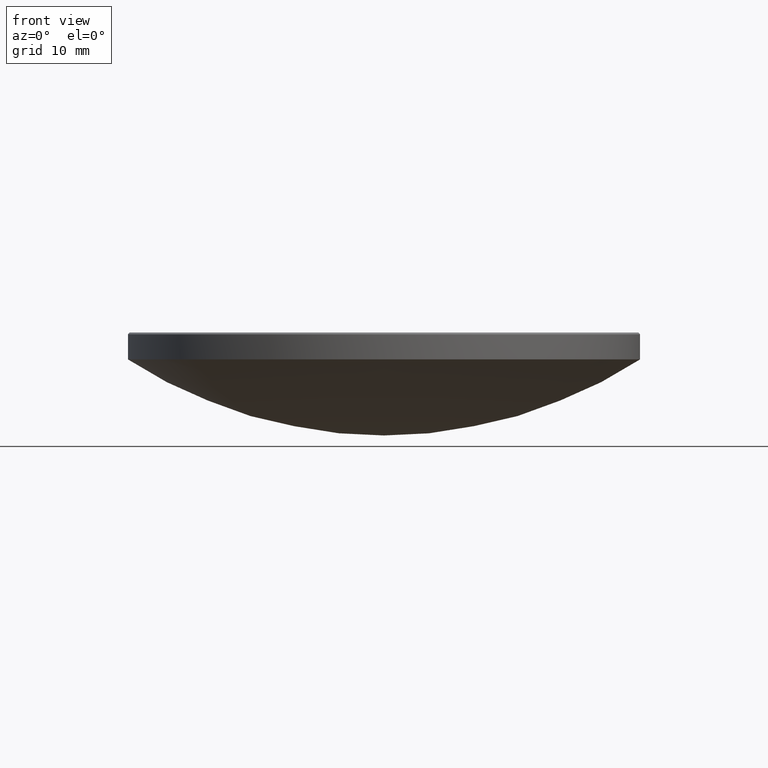
[diagram: clean part render]
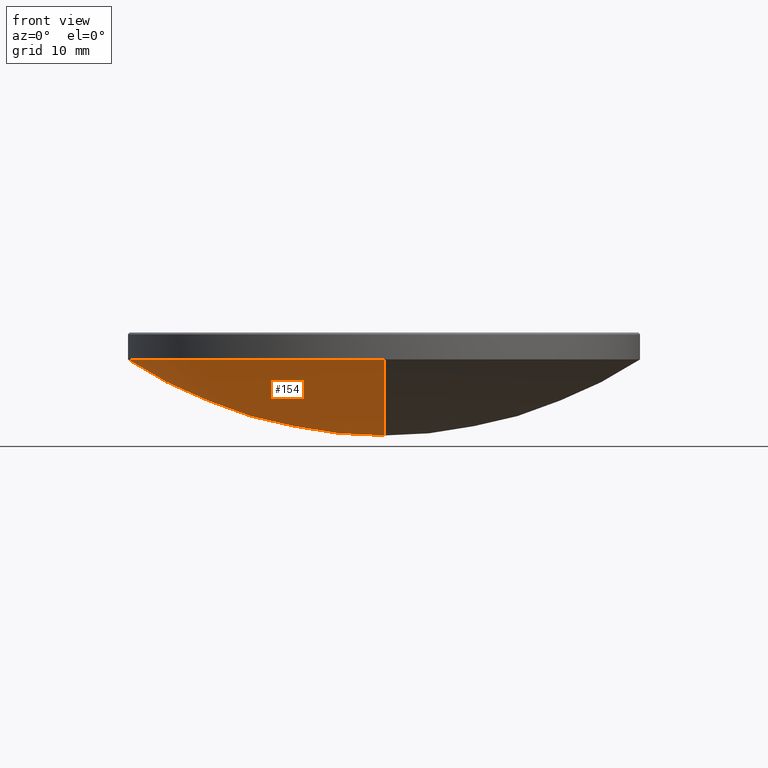
[diagram: same view with one face highlighted and labeled with its STEP entity id]
A machine part, front view. The second image highlights one B-rep face of the part: STEP entity #154.
In plain terms, the highlighted spherical surface has radius 46.53 mm.
Its self-contained STEP definition (entity closure, byte-faithful):
#5 = ORIENTED_EDGE ( 'NONE', *, *, #36, .F. ) ;
#11 = CARTESIAN_POINT ( 'NONE',  ( 0.000000000000000000, 0.000000000000000000, 53.98564992404256913 ) ) ;
#28 = CARTESIAN_POINT ( 'NONE',  ( 0.000000000000000000, 0.000000000000000000, 53.98564992404256913 ) ) ;
#34 = VERTEX_POINT ( 'NONE', #236 ) ;
#36 = EDGE_CURVE ( 'NONE', #144, #116, #131, .T. ) ;
#38 = CIRCLE ( 'NONE', #177, 25.39999999999999503 ) ;
#41 = ORIENTED_EDGE ( 'NONE', *, *, #244, .T. ) ;
#44 = DIRECTION ( 'NONE',  ( 1.000000000000000000, 0.000000000000000000, 0.000000000000000000 ) ) ;
#57 = DIRECTION ( 'NONE',  ( -1.000000000000000000, 1.224646799147353207E-16, 0.000000000000000000 ) ) ;
#71 = CIRCLE ( 'NONE', #278, 46.53000000000000114 ) ;
#77 = EDGE_CURVE ( 'NONE', #83, #144, #71, .T. ) ;
#83 = VERTEX_POINT ( 'NONE', #109 ) ;
#96 = CARTESIAN_POINT ( 'NONE',  ( 0.000000000000000000, 25.39999999999999858, 15.00000000000000000 ) ) ;
#100 = AXIS2_PLACEMENT_3D ( 'NONE', #28, #114, #266 ) ;
#109 = CARTESIAN_POINT ( 'NONE',  ( 0.000000000000000000, 2.849140778216317103E-15, 7.455649924042566212 ) ) ;
#110 = CARTESIAN_POINT ( 'NONE',  ( -25.39999999999999503, 0.000000000000000000, 15.00000000000000000 ) ) ;
#114 = DIRECTION ( 'NONE',  ( -1.000000000000000000, 0.000000000000000000, 0.000000000000000000 ) ) ;
#116 = VERTEX_POINT ( 'NONE', #110 ) ;
#122 = CARTESIAN_POINT ( 'NONE',  ( 0.000000000000000000, 0.000000000000000000, 15.00000000000000000 ) ) ;
#131 = CIRCLE ( 'NONE', #170, 25.39999999999999503 ) ;
#141 = DIRECTION ( 'NONE',  ( -1.224646799147353207E-16, -1.000000000000000000, 0.000000000000000000 ) ) ;
#144 = VERTEX_POINT ( 'NONE', #96 ) ;
#148 = DIRECTION ( 'NONE',  ( 1.000000000000000000, -0.000000000000000000, 0.000000000000000000 ) ) ;
#154 = ADVANCED_FACE ( 'NONE', ( #198 ), #225, .T. ) ;
#158 = ORIENTED_EDGE ( 'NONE', *, *, #77, .F. ) ;
#164 = AXIS2_PLACEMENT_3D ( 'NONE', #11, #57, #141 ) ;
#167 = DIRECTION ( 'NONE',  ( -0.000000000000000000, -0.000000000000000000, 1.000000000000000000 ) ) ;
#170 = AXIS2_PLACEMENT_3D ( 'NONE', #240, #167, #44 ) ;
#177 = AXIS2_PLACEMENT_3D ( 'NONE', #122, #201, #186 ) ;
#186 = DIRECTION ( 'NONE',  ( 1.000000000000000000, 0.000000000000000000, 0.000000000000000000 ) ) ;
#191 = CIRCLE ( 'NONE', #164, 46.53000000000000114 ) ;
#198 = FACE_OUTER_BOUND ( 'NONE', #273, .T. ) ;
#201 = DIRECTION ( 'NONE',  ( -0.000000000000000000, -0.000000000000000000, 1.000000000000000000 ) ) ;
#219 = DIRECTION ( 'NONE',  ( 0.000000000000000000, 0.000000000000000000, -1.000000000000000000 ) ) ;
#225 = SPHERICAL_SURFACE ( 'NONE', #100, 46.53000000000000114 ) ;
#236 = CARTESIAN_POINT ( 'NONE',  ( -3.110602869834276471E-15, -25.39999999999999858, 15.00000000000000000 ) ) ;
#239 = EDGE_CURVE ( 'NONE', #116, #34, #38, .T. ) ;
#240 = CARTESIAN_POINT ( 'NONE',  ( 0.000000000000000000, 0.000000000000000000, 15.00000000000000000 ) ) ;
#242 = CARTESIAN_POINT ( 'NONE',  ( 0.000000000000000000, 0.000000000000000000, 53.98564992404256913 ) ) ;
#244 = EDGE_CURVE ( 'NONE', #83, #34, #191, .T. ) ;
#255 = ORIENTED_EDGE ( 'NONE', *, *, #239, .F. ) ;
#266 = DIRECTION ( 'NONE',  ( 0.000000000000000000, 1.000000000000000000, 0.000000000000000000 ) ) ;
#273 = EDGE_LOOP ( 'NONE', ( #158, #41, #255, #5 ) ) ;
#278 = AXIS2_PLACEMENT_3D ( 'NONE', #242, #148, #219 ) ;